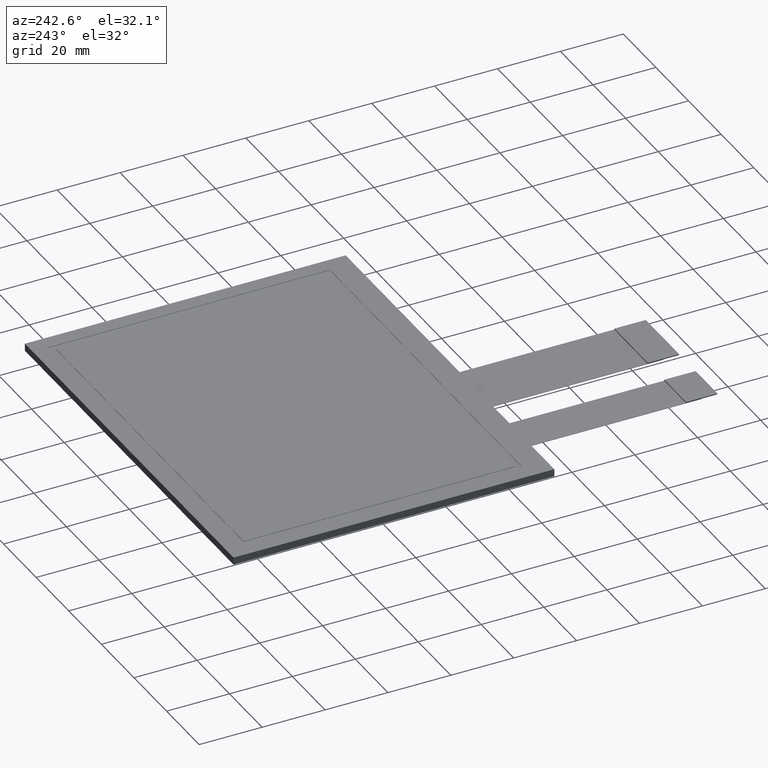
[diagram: clean part render]
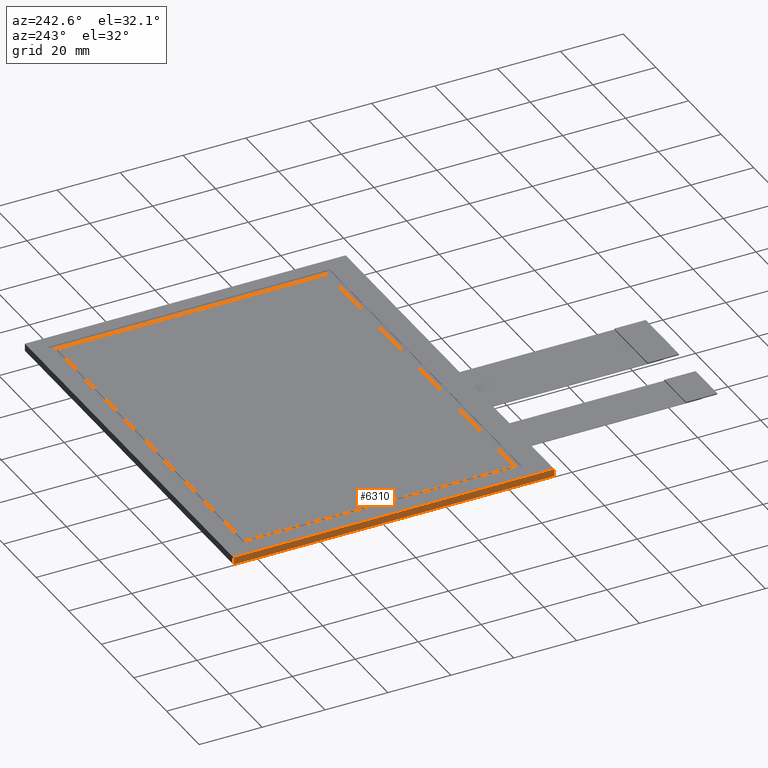
[diagram: same view with one face highlighted and labeled with its STEP entity id]
A machine part, auxiliary view. The second image highlights one B-rep face of the part: STEP entity #6310.
In plain terms, the highlighted planar face has unit normal (-1, -0, 0).
Its self-contained STEP definition (entity closure, byte-faithful):
#372=PLANE('',#6640);
#674=FACE_OUTER_BOUND('',#978,.T.);
#978=EDGE_LOOP('',(#5981,#5982,#5983,#5984));
#1855=LINE('',#9910,#2735);
#1859=LINE('',#9917,#2739);
#1860=LINE('',#9920,#2740);
#1861=LINE('',#9921,#2741);
#2735=VECTOR('',#8125,10.);
#2739=VECTOR('',#8131,10.);
#2740=VECTOR('',#8134,10.);
#2741=VECTOR('',#8135,10.);
#3339=VERTEX_POINT('',#9907);
#3340=VERTEX_POINT('',#9909);
#3342=VERTEX_POINT('',#9915);
#3343=VERTEX_POINT('',#9919);
#4223=EDGE_CURVE('',#3339,#3340,#1855,.T.);
#4227=EDGE_CURVE('',#3339,#3342,#1859,.T.);
#4228=EDGE_CURVE('',#3343,#3342,#1860,.T.);
#4229=EDGE_CURVE('',#3340,#3343,#1861,.T.);
#5981=ORIENTED_EDGE('',*,*,#4223,.F.);
#5982=ORIENTED_EDGE('',*,*,#4227,.T.);
#5983=ORIENTED_EDGE('',*,*,#4228,.F.);
#5984=ORIENTED_EDGE('',*,*,#4229,.F.);
#6310=ADVANCED_FACE('',(#674),#372,.T.);
#6640=AXIS2_PLACEMENT_3D('',#9918,#8132,#8133);
#8125=DIRECTION('',(1.7415263131375E-16,-1.,0.));
#8131=DIRECTION('',(0.,0.,-1.));
#8132=DIRECTION('center_axis',(-1.,-1.7415263131375E-16,0.));
#8133=DIRECTION('ref_axis',(-1.7415263131375E-16,1.,0.));
#8134=DIRECTION('',(-1.7415263131375E-16,1.,0.));
#8135=DIRECTION('',(0.,0.,-1.));
#9907=CARTESIAN_POINT('',(-64.03,49.69,0.));
#9909=CARTESIAN_POINT('',(-64.03,-52.31,0.));
#9910=CARTESIAN_POINT('',(-64.03,49.69,0.));
#9915=CARTESIAN_POINT('',(-64.03,49.69,-2.35));
#9917=CARTESIAN_POINT('',(-64.03,49.69,0.));
#9918=CARTESIAN_POINT('Origin',(-64.03,-52.31,0.));
#9919=CARTESIAN_POINT('',(-64.03,-52.31,-2.35));
#9920=CARTESIAN_POINT('',(-64.03,49.69,-2.35));
#9921=CARTESIAN_POINT('',(-64.03,-52.31,0.));